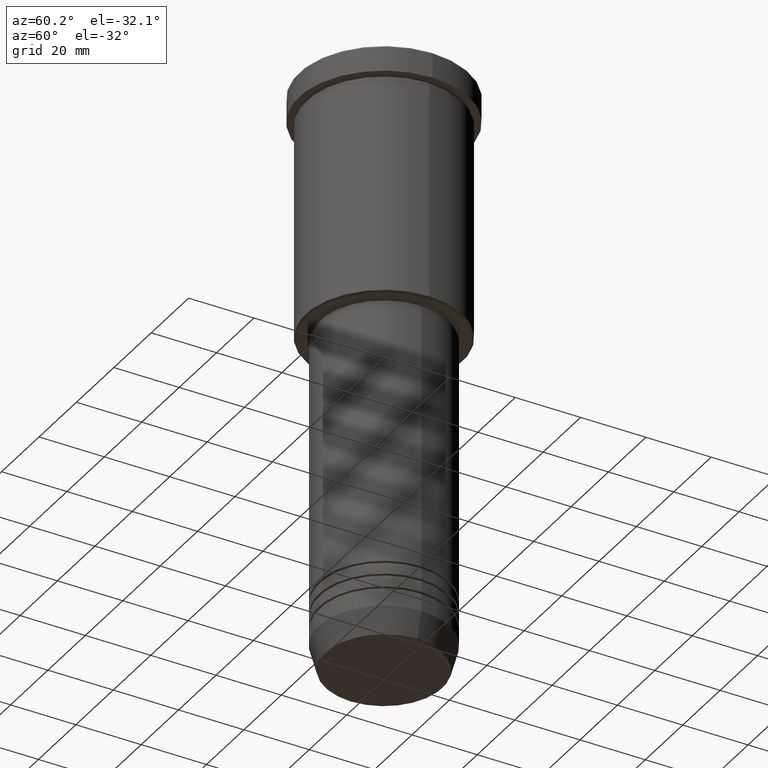
[diagram: clean part render]
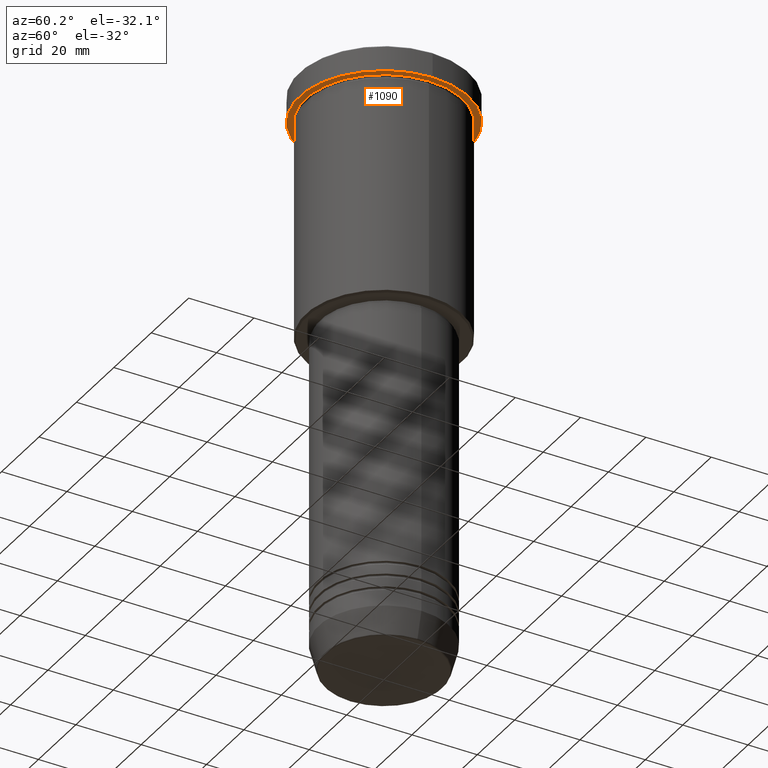
[diagram: same view with one face highlighted and labeled with its STEP entity id]
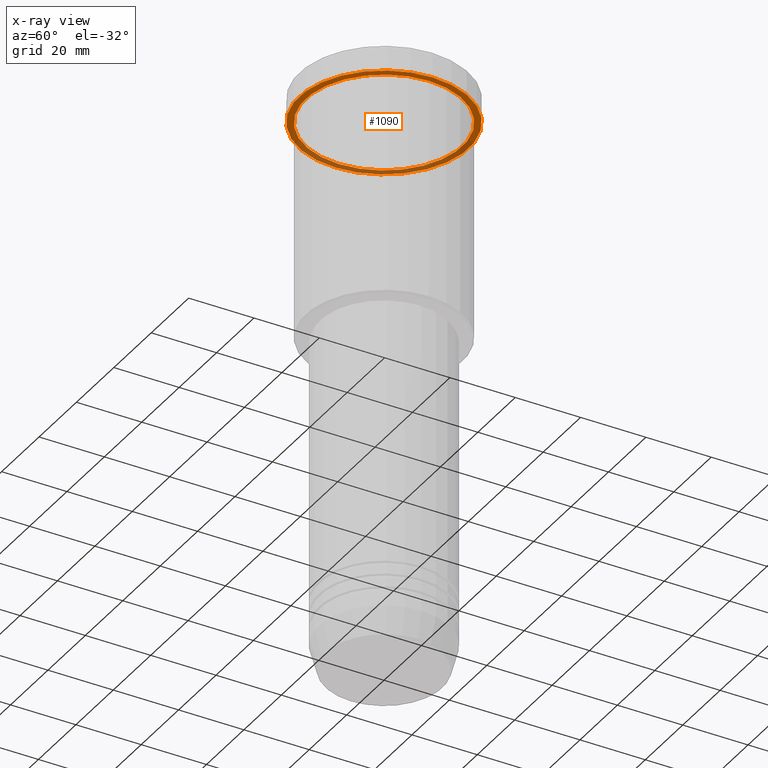
[diagram: x-ray of the same camera — body ghosted, the highlighted face saturated]
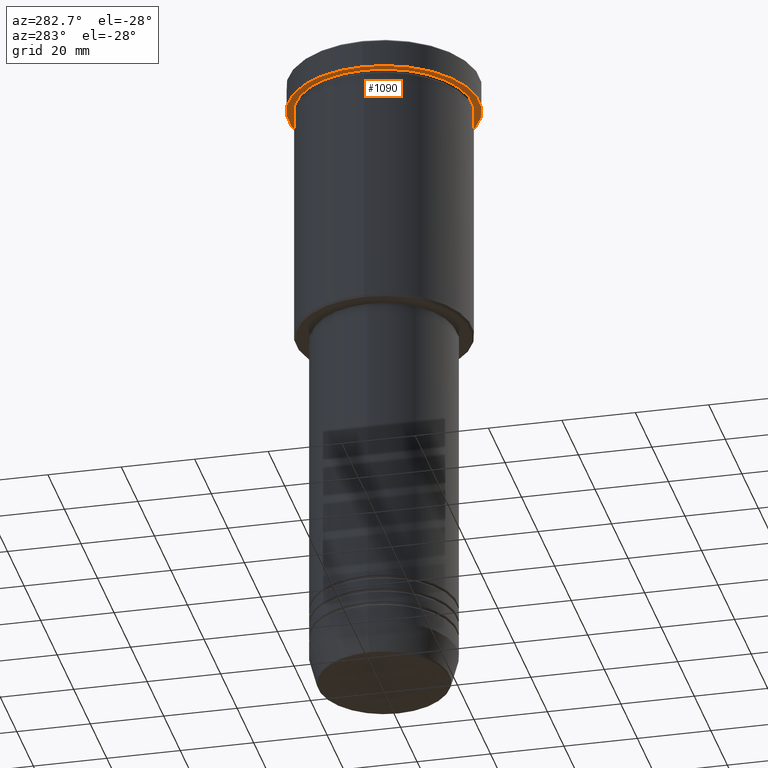
[diagram: same view with one face highlighted and labeled with its STEP entity id]
A machine part, auxiliary view. The second image highlights one B-rep face of the part: STEP entity #1090.
The next image is the same camera in x-ray: the body ghosted, the highlighted face saturated — about 38% of this face is hidden behind the body in this view.
A second angle (auxiliary view) of the same face is appended — the face is thin or edge-on in the first view.
In plain terms, the highlighted planar face has unit normal (0, 0, -1).
Its self-contained STEP definition (entity closure, byte-faithful):
#29 = EDGE_LOOP ( 'NONE', ( #193, #389 ) ) ;
#104 = DIRECTION ( 'NONE',  ( -0.000000000000000000, -0.000000000000000000, 1.000000000000000000 ) ) ;
#106 = VERTEX_POINT ( 'NONE', #935 ) ;
#150 = DIRECTION ( 'NONE',  ( 0.000000000000000000, 0.000000000000000000, -1.000000000000000000 ) ) ;
#193 = ORIENTED_EDGE ( 'NONE', *, *, #791, .T. ) ;
#233 = AXIS2_PLACEMENT_3D ( 'NONE', #982, #900, #366 ) ;
#238 = CIRCLE ( 'NONE', #535, 24.00000000000000000 ) ;
#251 = CIRCLE ( 'NONE', #417, 26.00000000000000000 ) ;
#279 = DIRECTION ( 'NONE',  ( -1.000000000000000000, 0.000000000000000000, 0.000000000000000000 ) ) ;
#324 = CARTESIAN_POINT ( 'NONE',  ( 0.000000000000000000, 26.00000000000000000, -7.999999999999992895 ) ) ;
#330 = FACE_BOUND ( 'NONE', #29, .T. ) ;
#358 = EDGE_CURVE ( 'NONE', #938, #520, #576, .T. ) ;
#366 = DIRECTION ( 'NONE',  ( 1.000000000000000000, 0.000000000000000000, 0.000000000000000000 ) ) ;
#389 = ORIENTED_EDGE ( 'NONE', *, *, #358, .T. ) ;
#404 = VERTEX_POINT ( 'NONE', #778 ) ;
#417 = AXIS2_PLACEMENT_3D ( 'NONE', #745, #990, #903 ) ;
#428 = EDGE_CURVE ( 'NONE', #106, #404, #251, .T. ) ;
#450 = AXIS2_PLACEMENT_3D ( 'NONE', #643, #1009, #652 ) ;
#463 = EDGE_CURVE ( 'NONE', #404, #106, #610, .T. ) ;
#516 = PLANE ( 'NONE',  #551 ) ;
#520 = VERTEX_POINT ( 'NONE', #849 ) ;
#535 = AXIS2_PLACEMENT_3D ( 'NONE', #752, #104, #279 ) ;
#540 = ORIENTED_EDGE ( 'NONE', *, *, #428, .F. ) ;
#551 = AXIS2_PLACEMENT_3D ( 'NONE', #324, #150, #794 ) ;
#576 = CIRCLE ( 'NONE', #450, 24.00000000000000000 ) ;
#610 = CIRCLE ( 'NONE', #233, 26.00000000000000000 ) ;
#643 = CARTESIAN_POINT ( 'NONE',  ( 0.000000000000000000, 0.000000000000000000, -7.999999999999992895 ) ) ;
#652 = DIRECTION ( 'NONE',  ( -1.000000000000000000, 0.000000000000000000, 0.000000000000000000 ) ) ;
#745 = CARTESIAN_POINT ( 'NONE',  ( 0.000000000000000000, 0.000000000000000000, -7.999999999999992895 ) ) ;
#752 = CARTESIAN_POINT ( 'NONE',  ( 0.000000000000000000, 0.000000000000000000, -7.999999999999992895 ) ) ;
#778 = CARTESIAN_POINT ( 'NONE',  ( -26.00000000000000000, 3.184081677783118191E-15, -7.999999999999992895 ) ) ;
#791 = EDGE_CURVE ( 'NONE', #520, #938, #238, .T. ) ;
#792 = ORIENTED_EDGE ( 'NONE', *, *, #463, .F. ) ;
#794 = DIRECTION ( 'NONE',  ( -1.000000000000000000, 0.000000000000000000, -0.000000000000000000 ) ) ;
#820 = EDGE_LOOP ( 'NONE', ( #540, #792 ) ) ;
#849 = CARTESIAN_POINT ( 'NONE',  ( -24.00000000000000000, 0.000000000000000000, -7.999999999999992895 ) ) ;
#900 = DIRECTION ( 'NONE',  ( -0.000000000000000000, -0.000000000000000000, 1.000000000000000000 ) ) ;
#903 = DIRECTION ( 'NONE',  ( 1.000000000000000000, 0.000000000000000000, 0.000000000000000000 ) ) ;
#935 = CARTESIAN_POINT ( 'NONE',  ( 26.00000000000000000, 0.000000000000000000, -7.999999999999992895 ) ) ;
#938 = VERTEX_POINT ( 'NONE', #1046 ) ;
#980 = FACE_OUTER_BOUND ( 'NONE', #820, .T. ) ;
#982 = CARTESIAN_POINT ( 'NONE',  ( 0.000000000000000000, 0.000000000000000000, -7.999999999999992895 ) ) ;
#990 = DIRECTION ( 'NONE',  ( -0.000000000000000000, -0.000000000000000000, 1.000000000000000000 ) ) ;
#1009 = DIRECTION ( 'NONE',  ( -0.000000000000000000, -0.000000000000000000, 1.000000000000000000 ) ) ;
#1046 = CARTESIAN_POINT ( 'NONE',  ( 24.00000000000000000, 2.939152317953647894E-15, -7.999999999999992895 ) ) ;
#1090 = ADVANCED_FACE ( 'NONE', ( #330, #980 ), #516, .T. ) ;